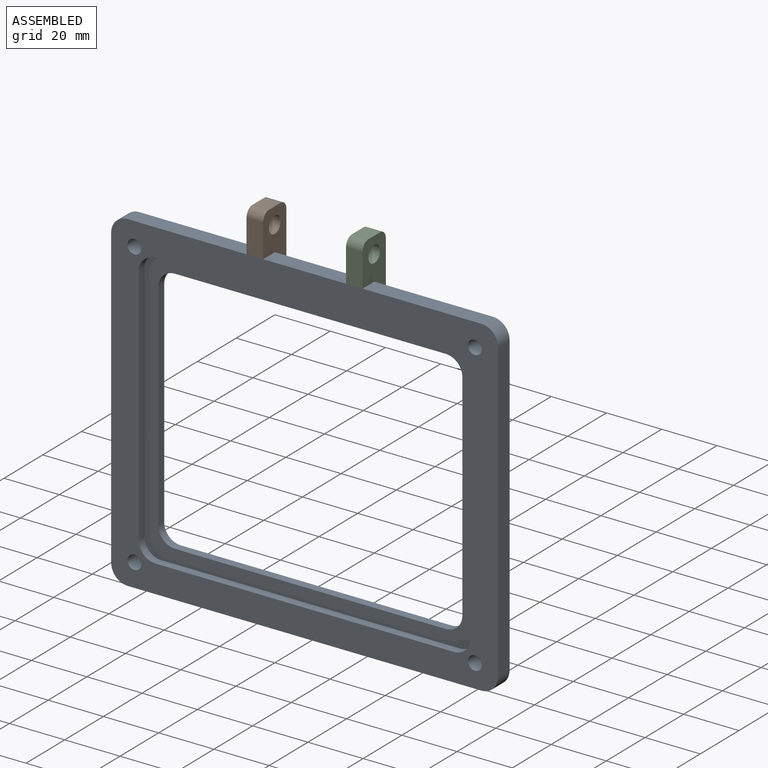
[diagram: assembled view]
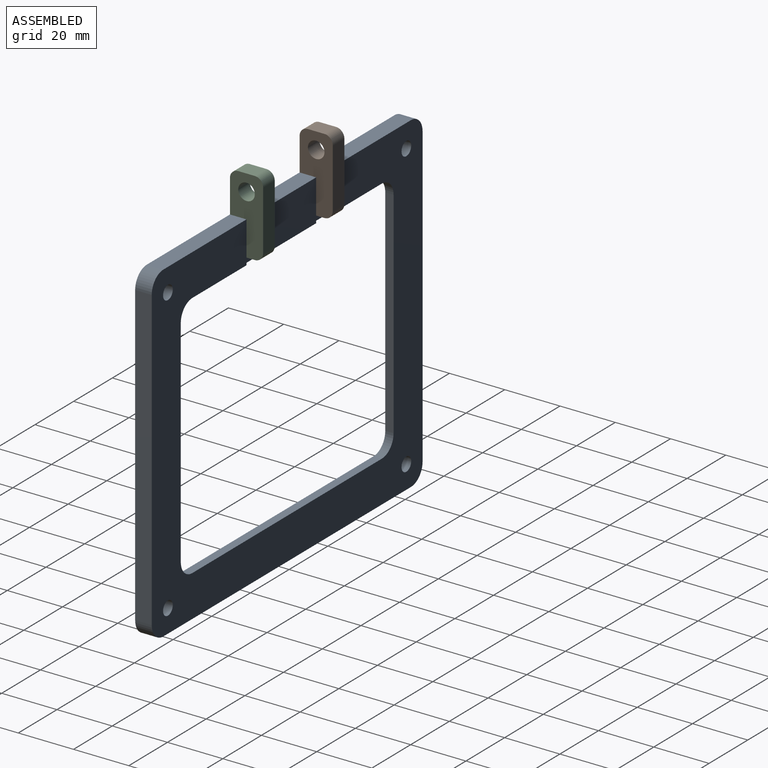
[diagram: assembled view, second angle]
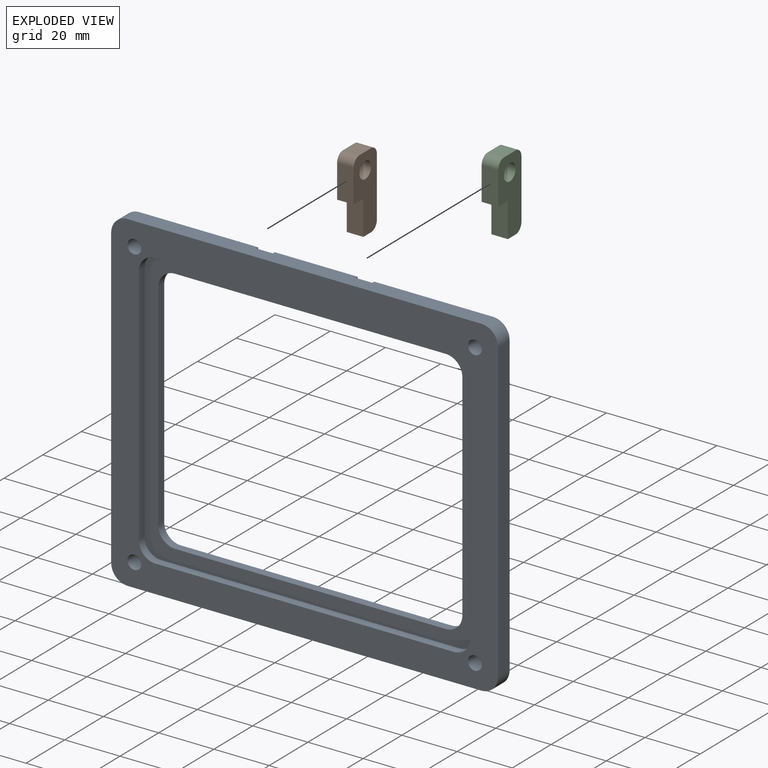
[diagram: exploded view]
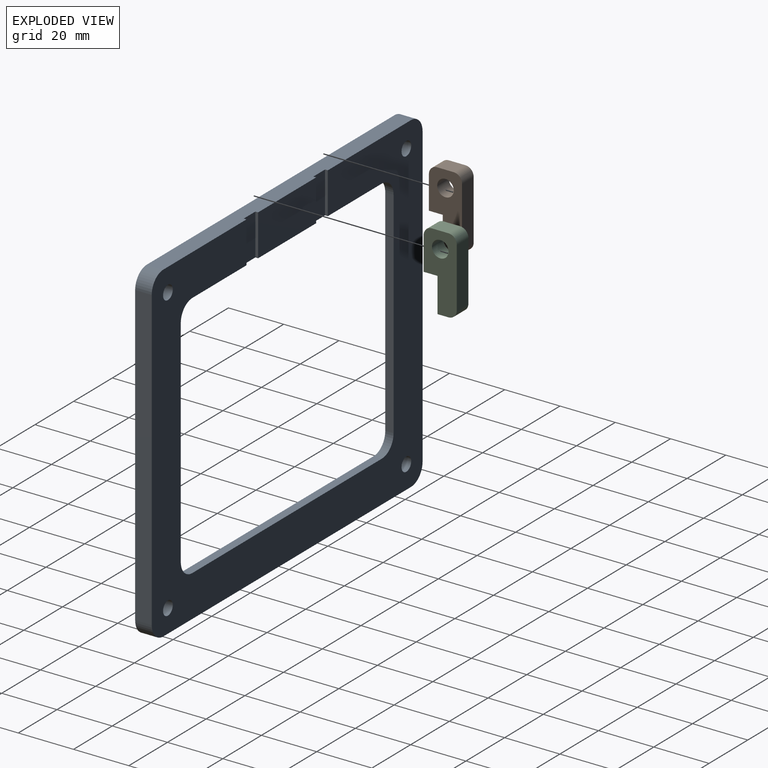
[diagram: exploded view, second angle]
ASSEMBLY  parts=3 mates=2
PART A: 38 faces, bbox 140x6x120 mm
  f0: plane 140x120mm, normal (0,1,0), area 6191.5mm2, adj f4,f5,f6,f7,f12,f13,f14,f15
  f1: plane 140x120mm, normal (0,-1,0), area 4721.5mm2, adj f4,f5,f6,f7,f8,f9,f10,f11
  f2: plane 30x15mm, normal (0,1,0), area 450mm2, adj f6,f14,f28,f32
  f3: plane 120x100mm, normal (0,-1,0), area 2100mm2, adj f8,f9,f10,f11,f12,f13,f14,f15
  f4: plane 128x6mm, normal (0,0,-1), area 768mm2, adj f0,f1,f16,f19
  f5: plane 108x6mm, normal (1,0,0), area 648mm2, adj f0,f1,f16,f17
  f6: plane 128x6mm, normal (0,0,1), area 756mm2, adj f0,f1,f2,f17,f18,f28,f29,f30
  f7: plane 108x6mm, normal (-1,0,0), area 648mm2, adj f0,f1,f18,f19
  f8: plane 108x3mm, normal (0,0,1), area 324mm2, adj f1,f3,f24,f27
  f9: plane 88x3mm, normal (-1,0,0), area 264mm2, adj f1,f3,f24,f25
  f10: plane 108x3mm, normal (0,0,-1), area 324mm2, adj f1,f3,f25,f26
  f11: plane 88x3mm, normal (1,0,0), area 264mm2, adj f1,f3,f26,f27
  f12: plane 98x3mm, normal (0,0,1), area 294mm2, adj f0,f3,f20,f23
  f13: plane 78x3mm, normal (-1,0,0), area 234mm2, adj f0,f3,f20,f21
  f14: plane 98x3mm, normal (0,0,-1), area 282mm2, adj f0,f2,f3,f21,f22,f28,f29,f30
  f15: plane 78x3mm, normal (1,0,0), area 234mm2, adj f0,f3,f22,f23
  f16: cylinder r=6mm len=6mm, axis (0,-1,0), area 56.5mm2, adj f0,f1,f4,f5
  f17: cylinder r=6mm len=6mm, axis (0,1,0), area 56.5mm2, adj f0,f1,f5,f6
  f18: cylinder r=6mm len=6mm, axis (0,-1,0), area 56.5mm2, adj f0,f1,f6,f7
  f19: cylinder r=6mm len=6mm, axis (0,1,0), area 56.5mm2, adj f0,f1,f4,f7
  f20: cylinder r=6mm len=6mm, axis (0,-1,0), area 28.3mm2, adj f0,f3,f12,f13
  f21: cylinder r=6mm len=6mm, axis (0,1,0), area 28.3mm2, adj f0,f3,f13,f14
  f22: cylinder r=6mm len=6mm, axis (0,-1,0), area 28.3mm2, adj f0,f3,f14,f15
  f23: cylinder r=6mm len=6mm, axis (0,1,0), area 28.3mm2, adj f0,f3,f12,f15
  f24: cylinder r=6mm len=6mm, axis (0,-1,0), area 28.3mm2, adj f1,f3,f8,f9
  f25: cylinder r=6mm len=6mm, axis (0,1,0), area 28.3mm2, adj f1,f3,f9,f10
  f26: cylinder r=6mm len=6mm, axis (0,-1,0), area 28.3mm2, adj f1,f3,f10,f11
  f27: cylinder r=6mm len=6mm, axis (0,1,0), area 28.3mm2, adj f1,f3,f8,f11
  f28: plane 15x1mm, normal (-1,0,0), area 15mm2, adj f2,f6,f14,f30
  f29: plane 15x1mm, normal (1,0,0), area 15mm2, adj f0,f6,f14,f30
  f30: plane 15x6mm, normal (0,1,0), area 90mm2, adj f6,f14,f28,f29
  f31: plane 15x1mm, normal (-1,0,0), area 15mm2, adj f0,f6,f14,f33
  f32: plane 15x1mm, normal (1,0,0), area 15mm2, adj f2,f6,f14,f33
  f33: plane 15x6mm, normal (0,1,0), area 90mm2, adj f6,f14,f31,f32
  f34: cylinder r=2.5mm len=6mm, axis (0,-1,0), area 94.2mm2, adj f0,f1
  f35: cylinder r=2.5mm len=6mm, axis (0,-1,0), area 94.2mm2, adj f0,f1
  f36: cylinder r=2.5mm len=6mm, axis (0,-1,0), area 94.2mm2, adj f0,f1
  f37: cylinder r=2.5mm len=6mm, axis (0,-1,0), area 94.2mm2, adj f0,f1
PART B: 12 faces, bbox 6x12x27.5 mm
  f0: plane 21.5x6mm, normal (0,1,0), area 129mm2, adj f1,f7,f9,f10
  f1: cylinder r=3mm len=6mm, axis (-1,0,0), area 28.3mm2, adj f0,f2,f9,f10
  f2: plane 6x6mm, normal (0,0,1), area 36mm2, adj f1,f3,f9,f10
  f3: cylinder r=3mm len=6mm, axis (-1,0,0), area 28.3mm2, adj f2,f4,f9,f10
  f4: plane 12x6mm, normal (0,-1,0), area 72mm2, adj f3,f5,f9,f10
  f5: plane 6x5mm, normal (0,0,-1), area 30mm2, adj f4,f9,f10,f11
  f6: plane 6x4mm, normal (0,0,-1), area 24mm2, adj f7,f9,f10,f11
  f7: cylinder r=3mm len=6mm, axis (-1,0,0), area 28.3mm2, adj f0,f6,f9,f10
  f8: cylinder r=3mm len=6mm, axis (-1,0,0), area 113.1mm2, adj f9,f10
  f9: plane 27.5x12mm, normal (1,0,0), area 233.4mm2, adj f0,f1,f2,f3,f4,f5,f6,f7
  f10: plane 27.5x12mm, normal (-1,0,0), area 233.4mm2, adj f0,f1,f2,f3,f4,f5,f6,f7
  f11: plane 12.5x6mm, normal (0,-1,0), area 75mm2, adj f5,f6,f9,f10
PART C: same geometry as B
PLACE A t=(21,0,-47.5)mm
PLACE B at identity
PLACE C t=(36,0,0)mm
MATE fastened A.f33 <-> C.f11  axis (0,1,0) through (39,-1,12.5)mm
MATE fastened A.f30 <-> B.f11  axis (0,1,0) through (3,-1,12.5)mm
